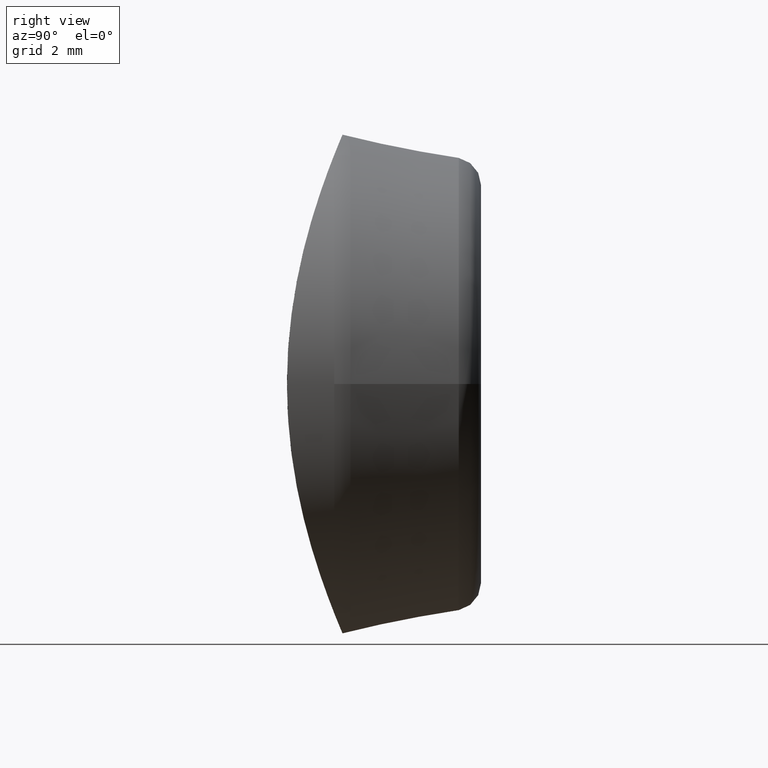
[diagram: clean part render]
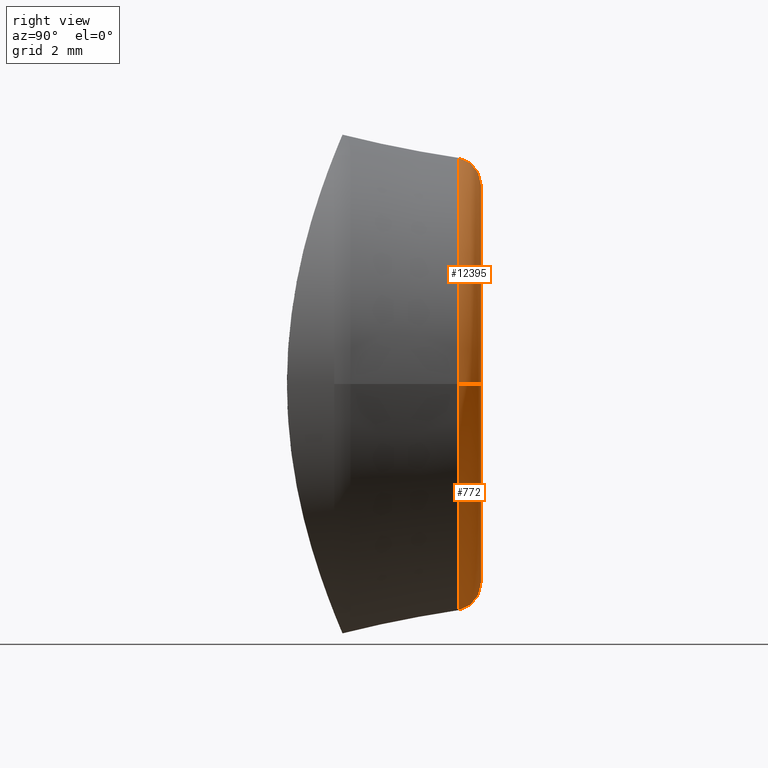
[diagram: same view with one multi-face feature highlighted, each face labeled with its STEP entity id]
A machine part, right view. The highlighted faces form ONE feature: a constant-radius fillet chain: 2 tangent blend faces with common blend radius 1 mm. The faces share edges in the B-rep.
Their STEP definitions:
[1] entity #12395 (Torus):
#311 = TOROIDAL_SURFACE ( 'NONE', #461, 7.180196097281442924, 1.000000000000000000 ) ;
#461 = AXIS2_PLACEMENT_3D ( 'NONE', #3287, #10228, #4276 ) ;
#812 = EDGE_CURVE ( 'NONE', #4791, #4152, #4458, .T. ) ;
#1346 = CIRCLE ( 'NONE', #9649, 1.000000000000000000 ) ;
#1807 = DIRECTION ( 'NONE',  ( -1.000000000000000000, 0.000000000000000000, 0.000000000000000000 ) ) ;
#1919 = DIRECTION ( 'NONE',  ( -5.261350102154445000E-17, -1.000000000000000000, 0.000000000000000000 ) ) ;
#2197 = CARTESIAN_POINT ( 'NONE',  ( 8.160776772972363702, 4.196116135138177938, 0.000000000000000000 ) ) ;
#2918 = DIRECTION ( 'NONE',  ( -1.000000000000000000, 0.000000000000000000, 0.000000000000000000 ) ) ;
#2971 = CIRCLE ( 'NONE', #4461, 1.000000000000000000 ) ;
#3261 = ORIENTED_EDGE ( 'NONE', *, *, #8548, .F. ) ;
#3287 = CARTESIAN_POINT ( 'NONE',  ( 2.104540040861778000E-16, 4.000000000000000000, 0.000000000000000000 ) ) ;
#3291 = CARTESIAN_POINT ( 'NONE',  ( -7.180196097281442924, 5.000000000000000000, 9.393636660681352911E-16 ) ) ;
#3490 = DIRECTION ( 'NONE',  ( 1.000000000000000000, 0.000000000000000000, 0.000000000000000000 ) ) ;
#3526 = AXIS2_PLACEMENT_3D ( 'NONE', #9342, #11458, #3490 ) ;
#4152 = VERTEX_POINT ( 'NONE', #7560 ) ;
#4276 = DIRECTION ( 'NONE',  ( 1.000000000000000000, -5.261350102154445000E-17, 0.000000000000000000 ) ) ;
#4458 = CIRCLE ( 'NONE', #3526, 7.180196097281442924 ) ;
#4461 = AXIS2_PLACEMENT_3D ( 'NONE', #10868, #11904, #6875 ) ;
#4686 = CARTESIAN_POINT ( 'NONE',  ( 7.180196097281442924, 4.000000000000000000, 0.000000000000000000 ) ) ;
#4791 = VERTEX_POINT ( 'NONE', #3291 ) ;
#4808 = VERTEX_POINT ( 'NONE', #2197 ) ;
#5288 = FACE_OUTER_BOUND ( 'NONE', #8359, .T. ) ;
#5475 = AXIS2_PLACEMENT_3D ( 'NONE', #12902, #1919, #2918 ) ;
#5726 = ORIENTED_EDGE ( 'NONE', *, *, #7642, .F. ) ;
#6450 = EDGE_CURVE ( 'NONE', #4791, #10386, #2971, .T. ) ;
#6742 = DIRECTION ( 'NONE',  ( 0.000000000000000000, -0.000000000000000000, -1.000000000000000000 ) ) ;
#6875 = DIRECTION ( 'NONE',  ( 1.000000000000000000, 0.000000000000000000, -1.224646799147353454E-16 ) ) ;
#7560 = CARTESIAN_POINT ( 'NONE',  ( 7.180196097281442924, 5.000000000000000000, 0.000000000000000000 ) ) ;
#7642 = EDGE_CURVE ( 'NONE', #4808, #10386, #11844, .T. ) ;
#8359 = EDGE_LOOP ( 'NONE', ( #10255, #9020, #5726, #3261 ) ) ;
#8540 = CARTESIAN_POINT ( 'NONE',  ( -8.160776772972363702, 4.196116135138177938, 1.051102842906766997E-15 ) ) ;
#8548 = EDGE_CURVE ( 'NONE', #4152, #4808, #1346, .T. ) ;
#9020 = ORIENTED_EDGE ( 'NONE', *, *, #6450, .T. ) ;
#9342 = CARTESIAN_POINT ( 'NONE',  ( 2.630675051077222685E-16, 5.000000000000000000, 0.000000000000000000 ) ) ;
#9649 = AXIS2_PLACEMENT_3D ( 'NONE', #4686, #6742, #1807 ) ;
#10228 = DIRECTION ( 'NONE',  ( -5.261350102154445000E-17, -1.000000000000000000, 0.000000000000000000 ) ) ;
#10255 = ORIENTED_EDGE ( 'NONE', *, *, #812, .F. ) ;
#10386 = VERTEX_POINT ( 'NONE', #8540 ) ;
#10868 = CARTESIAN_POINT ( 'NONE',  ( -7.180196097281442924, 4.000000000000000000, 8.793204167786036448E-16 ) ) ;
#11458 = DIRECTION ( 'NONE',  ( 5.261350102154445000E-17, 1.000000000000000000, -0.000000000000000000 ) ) ;
#11844 = CIRCLE ( 'NONE', #5475, 8.160776772972363702 ) ;
#11904 = DIRECTION ( 'NONE',  ( 1.224646799147353207E-16, -6.443295561797041419E-33, 1.000000000000000000 ) ) ;
#12395 = ADVANCED_FACE ( 'NONE', ( #5288 ), #311, .T. ) ;
#12902 = CARTESIAN_POINT ( 'NONE',  ( 2.207723605626119049E-16, 4.196116135138177938, 0.000000000000000000 ) ) ;
[2] entity #772 (Torus):
#772 = ADVANCED_FACE ( 'NONE', ( #11315 ), #6290, .T. ) ;
#1346 = CIRCLE ( 'NONE', #9649, 1.000000000000000000 ) ;
#1454 = DIRECTION ( 'NONE',  ( -5.261350102154445000E-17, -1.000000000000000000, 0.000000000000000000 ) ) ;
#1807 = DIRECTION ( 'NONE',  ( -1.000000000000000000, 0.000000000000000000, 0.000000000000000000 ) ) ;
#2197 = CARTESIAN_POINT ( 'NONE',  ( 8.160776772972363702, 4.196116135138177938, 0.000000000000000000 ) ) ;
#2687 = CIRCLE ( 'NONE', #8478, 7.180196097281442924 ) ;
#2836 = EDGE_LOOP ( 'NONE', ( #8375, #5180, #5151, #12160 ) ) ;
#2971 = CIRCLE ( 'NONE', #4461, 1.000000000000000000 ) ;
#3291 = CARTESIAN_POINT ( 'NONE',  ( -7.180196097281442924, 5.000000000000000000, 9.393636660681352911E-16 ) ) ;
#4152 = VERTEX_POINT ( 'NONE', #7560 ) ;
#4279 = DIRECTION ( 'NONE',  ( -1.000000000000000000, 0.000000000000000000, 0.000000000000000000 ) ) ;
#4461 = AXIS2_PLACEMENT_3D ( 'NONE', #10868, #11904, #6875 ) ;
#4524 = CIRCLE ( 'NONE', #6779, 8.160776772972363702 ) ;
#4686 = CARTESIAN_POINT ( 'NONE',  ( 7.180196097281442924, 4.000000000000000000, 0.000000000000000000 ) ) ;
#4791 = VERTEX_POINT ( 'NONE', #3291 ) ;
#4808 = VERTEX_POINT ( 'NONE', #2197 ) ;
#4897 = DIRECTION ( 'NONE',  ( 5.261350102154445000E-17, 1.000000000000000000, -0.000000000000000000 ) ) ;
#5151 = ORIENTED_EDGE ( 'NONE', *, *, #8548, .T. ) ;
#5180 = ORIENTED_EDGE ( 'NONE', *, *, #10162, .F. ) ;
#6290 = TOROIDAL_SURFACE ( 'NONE', #12903, 7.180196097281442924, 1.000000000000000000 ) ;
#6450 = EDGE_CURVE ( 'NONE', #4791, #10386, #2971, .T. ) ;
#6742 = DIRECTION ( 'NONE',  ( 0.000000000000000000, -0.000000000000000000, -1.000000000000000000 ) ) ;
#6779 = AXIS2_PLACEMENT_3D ( 'NONE', #10366, #1454, #4279 ) ;
#6875 = DIRECTION ( 'NONE',  ( 1.000000000000000000, 0.000000000000000000, -1.224646799147353454E-16 ) ) ;
#7043 = EDGE_CURVE ( 'NONE', #10386, #4808, #4524, .T. ) ;
#7560 = CARTESIAN_POINT ( 'NONE',  ( 7.180196097281442924, 5.000000000000000000, 0.000000000000000000 ) ) ;
#8375 = ORIENTED_EDGE ( 'NONE', *, *, #6450, .F. ) ;
#8478 = AXIS2_PLACEMENT_3D ( 'NONE', #10867, #4897, #8889 ) ;
#8540 = CARTESIAN_POINT ( 'NONE',  ( -8.160776772972363702, 4.196116135138177938, 1.051102842906766997E-15 ) ) ;
#8548 = EDGE_CURVE ( 'NONE', #4152, #4808, #1346, .T. ) ;
#8889 = DIRECTION ( 'NONE',  ( 1.000000000000000000, 0.000000000000000000, 0.000000000000000000 ) ) ;
#9570 = DIRECTION ( 'NONE',  ( 1.000000000000000000, -5.261350102154445000E-17, 0.000000000000000000 ) ) ;
#9649 = AXIS2_PLACEMENT_3D ( 'NONE', #4686, #6742, #1807 ) ;
#10162 = EDGE_CURVE ( 'NONE', #4152, #4791, #2687, .T. ) ;
#10366 = CARTESIAN_POINT ( 'NONE',  ( 2.207723605626119049E-16, 4.196116135138177938, 0.000000000000000000 ) ) ;
#10386 = VERTEX_POINT ( 'NONE', #8540 ) ;
#10867 = CARTESIAN_POINT ( 'NONE',  ( 2.630675051077222685E-16, 5.000000000000000000, 0.000000000000000000 ) ) ;
#10868 = CARTESIAN_POINT ( 'NONE',  ( -7.180196097281442924, 4.000000000000000000, 8.793204167786036448E-16 ) ) ;
#10960 = CARTESIAN_POINT ( 'NONE',  ( 2.104540040861778000E-16, 4.000000000000000000, 0.000000000000000000 ) ) ;
#11282 = DIRECTION ( 'NONE',  ( -5.261350102154445000E-17, -1.000000000000000000, 0.000000000000000000 ) ) ;
#11315 = FACE_OUTER_BOUND ( 'NONE', #2836, .T. ) ;
#11904 = DIRECTION ( 'NONE',  ( 1.224646799147353207E-16, -6.443295561797041419E-33, 1.000000000000000000 ) ) ;
#12160 = ORIENTED_EDGE ( 'NONE', *, *, #7043, .F. ) ;
#12903 = AXIS2_PLACEMENT_3D ( 'NONE', #10960, #11282, #9570 ) ;